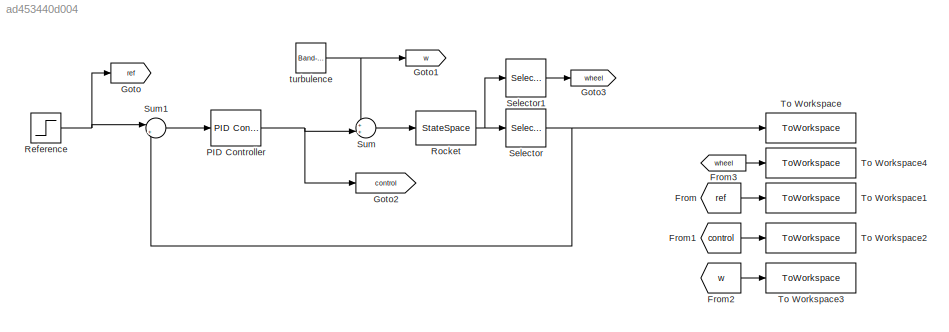
MODEL slx_ad453440d004
KIND model
CONFIG AbsTol = auto
CONFIG EnableMultiTasking = off
CONFIG FixedStep = dt
CONFIG MaxStep = auto
CONFIG MinStep = auto
CONFIG RelTol = 1e-3
CONFIG SampleTimeConstraint = Unconstrained
CONFIG SolverName = FixedStepAuto
CONFIG StartTime = 0.0
CONFIG StopTime = T
BLOCK [From] From
  GotoTag = ref
BLOCK [From] From1
  GotoTag = control
BLOCK [From] From2
  GotoTag = w
BLOCK [From] From3
  GotoTag = wheel
BLOCK [Goto] Goto
  GotoTag = ref
BLOCK [Goto] Goto1
  GotoTag = w
BLOCK [Goto] Goto2
  GotoTag = control
BLOCK [Goto] Goto3
  GotoTag = wheel
BLOCK [Reference] PID Controller  REF=slpidlib/PID Controller
  Ports = [1, 1]
  SourceBlock = slpidlib/PID Controller
  SourceProductBaseCode = SL
  SourceType = PID 1dof
BLOCK [Step] Reference
  SampleTime = 0
  Time = T+1
BLOCK [StateSpace] Rocket
  A = zeros(2,2)
  B = [-1/I_R; 1/I_W]
  C = eye(2)
  D = [0; 0]
  InitialCondition = [W_0; 0]
  ParameterTunability = Unconstrained
  Ports = [1, 1]
BLOCK [Selector] Selector
  IndexOptions = Index vector (dialog)
  Indices = [1]
  InputPortWidth = 2
  OutputSizes = 1
  Ports = [1, 1]
BLOCK [Selector] Selector1
  IndexOptions = Index vector (dialog)
  Indices = 2
  InputPortWidth = 2
  OutputSizes = 1
  Ports = [1, 1]
BLOCK [Sum] Sum
  Inputs = ++|
  Ports = [2, 1]
BLOCK [Sum] Sum1
  Inputs = |+-
  Ports = [2, 1]
BLOCK [ToWorkspace] To Workspace
  FixptAsFi = on
  MaxDataPoints = inf
  Ports = [1]
  SampleTime = -1
  SaveFormat = Timeseries
  VariableName = speed
BLOCK [ToWorkspace] To Workspace1
  MaxDataPoints = inf
  Ports = [1]
  SampleTime = -1
  SaveFormat = Timeseries
  VariableName = reference
BLOCK [ToWorkspace] To Workspace2
  FixptAsFi = on
  MaxDataPoints = inf
  Ports = [1]
  SampleTime = -1
  SaveFormat = Timeseries
  VariableName = control
BLOCK [ToWorkspace] To Workspace3
  FixptAsFi = on
  MaxDataPoints = inf
  Ports = [1]
  SampleTime = -1
  SaveFormat = Timeseries
  VariableName = process_noise
BLOCK [ToWorkspace] To Workspace4
  MaxDataPoints = inf
  Ports = [1]
  SampleTime = -1
  SaveFormat = Timeseries
  VariableName = wheel
BLOCK [Reference] turbulence  REF=simulink/Sources/Band-Limited
White Noise
  Ports = [0, 1]
  SourceBlock = simulink/Sources/Band-Limited\nWhite Noise
  SourceProductBaseCode = SL
  SourceType = Band-Limited White Noise.
LINE From1:1 -> To Workspace2:1
LINE From2:1 -> To Workspace3:1
LINE From3:1 -> To Workspace4:1
LINE From:1 -> To Workspace1:1
NET PID Controller:1 -> Goto2:1, Sum:2
NET Reference:1 -> Goto:1, Sum1:1
NET Rocket:1 -> Selector1:1, Selector:1
LINE Selector1:1 -> Goto3:1
NET Selector:1 -> Sum1:2, To Workspace:1
LINE Sum1:1 -> PID Controller:1
LINE Sum:1 -> Rocket:1
NET turbulence:1 -> Goto1:1, Sum:1
note: NET lines group one-source signal fan-out (src -> all destinations, sorted); 1:1 wires keep LINE
